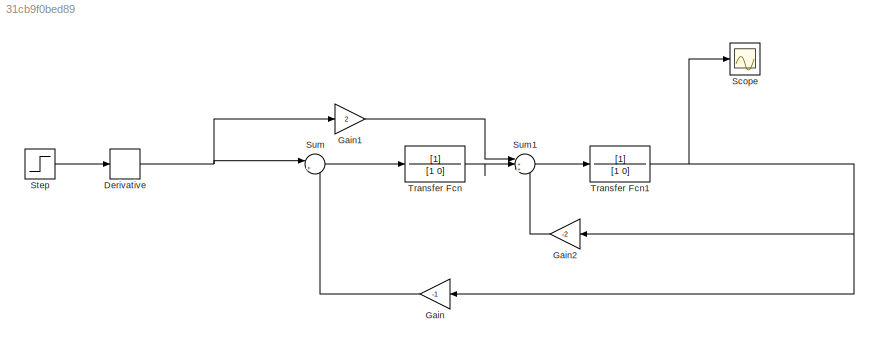
MODEL slx_31cb9f0bed89
KIND model
CONFIG AbsTol = auto
CONFIG EnableMultiTasking = off
CONFIG FixedStep = auto
CONFIG MaxStep = auto
CONFIG MinStep = auto
CONFIG RelTol = 1e-3
CONFIG SampleTimeConstraint = Unconstrained
CONFIG SolverName = VariableStepAuto
CONFIG StartTime = 0.0
CONFIG StopTime = 100.0
BLOCK [Derivative] Derivative
BLOCK [Gain] Gain
  Gain = -1
BLOCK [Gain] Gain1
  Gain = 2
BLOCK [Gain] Gain2
  Gain = -2
BLOCK [Scope] Scope
  Floating = off
  NumInputPorts = 1
  Ports = [1]
  ScopeSpecificationString = Simulink.scopes.TimeScopeBlockCfg('CurrentConfiguration', extmgr.ConfigurationSet(extmgr.Configuration('Core','General UI',true),extmgr.Configuration('Core','Source UI',true),extmgr.Configuration('Sources','WiredSimulink',true),extmgr.Configuration('Visuals','Time Domain',true,'SerializedDisplays',{struct('MinYLimReal','-0.01425','MaxYLimReal','0.10529','YLabelReal','','MinYLimMag','0.00000','MaxY...<+1333ch>
BLOCK [Step] Step
  SampleTime = 0
  Time = 0.001
BLOCK [Sum] Sum
  Inputs = |++
  Ports = [2, 1]
BLOCK [Sum] Sum1
  Inputs = |+++
  Ports = [3, 1]
BLOCK [TransferFcn] Transfer Fcn
  Denominator = [1 0]
BLOCK [TransferFcn] Transfer Fcn1
  Denominator = [1 0]
NET Derivative:1 -> Gain1:1, Sum:1
LINE Gain1:1 -> Sum1:1
LINE Gain2:1 -> Sum1:3
LINE Gain:1 -> Sum:2
LINE Step:1 -> Derivative:1
LINE Sum1:1 -> Transfer Fcn1:1
LINE Sum:1 -> Transfer Fcn:1
NET Transfer Fcn1:1 -> Gain2:1, Gain:1, Scope:1
LINE Transfer Fcn:1 -> Sum1:2
note: NET lines group one-source signal fan-out (src -> all destinations, sorted); 1:1 wires keep LINE
